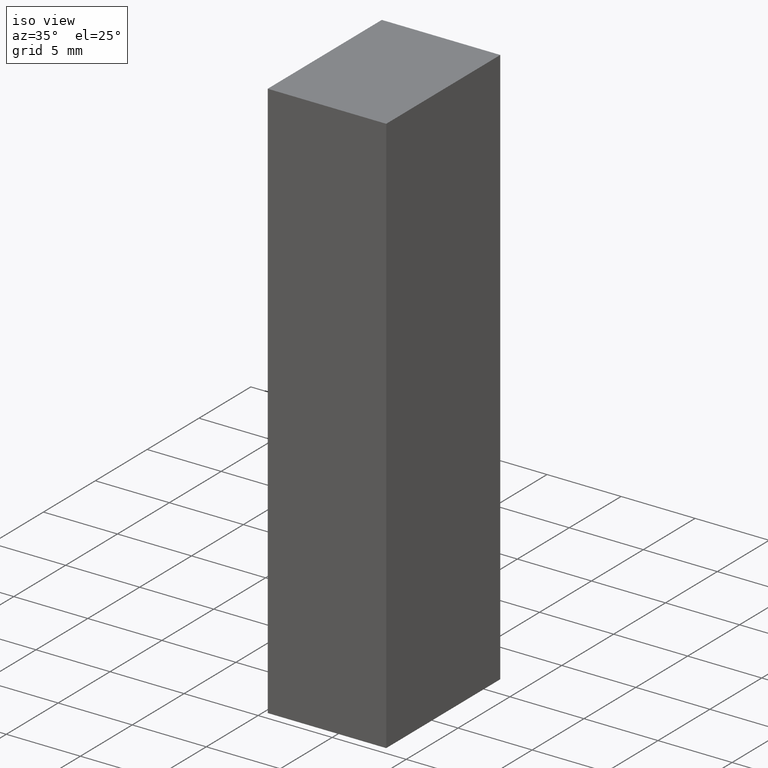
[diagram: clean part render]
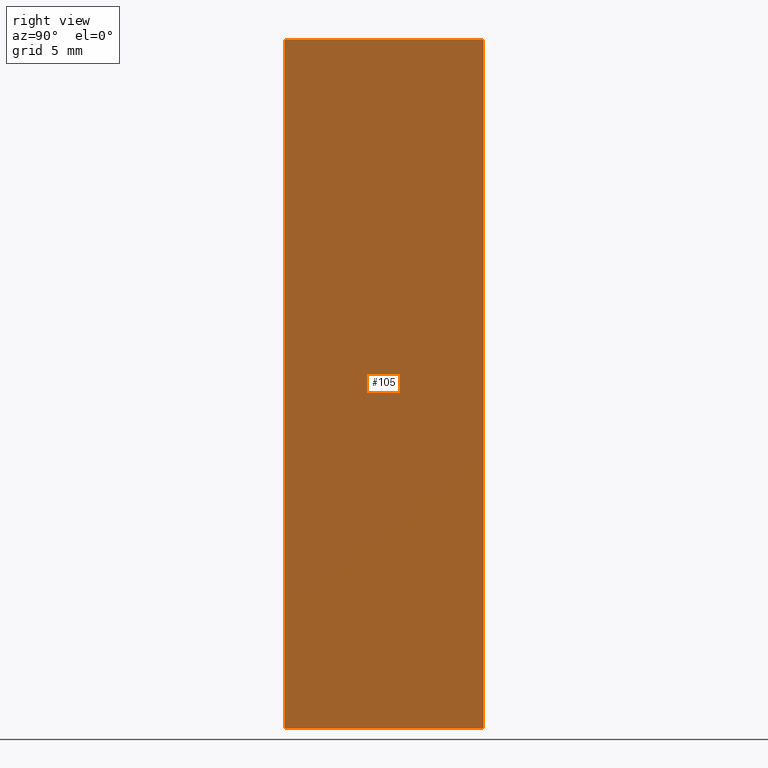
[diagram: tour spotlight — one face highlighted and labeled with its STEP entity id]
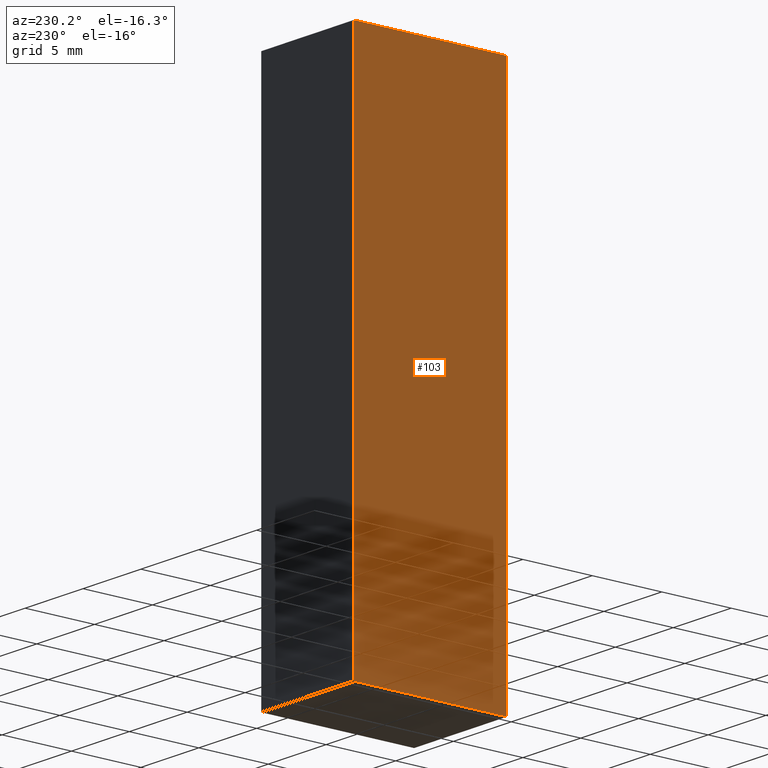
[diagram: tour spotlight — one face highlighted and labeled with its STEP entity id]
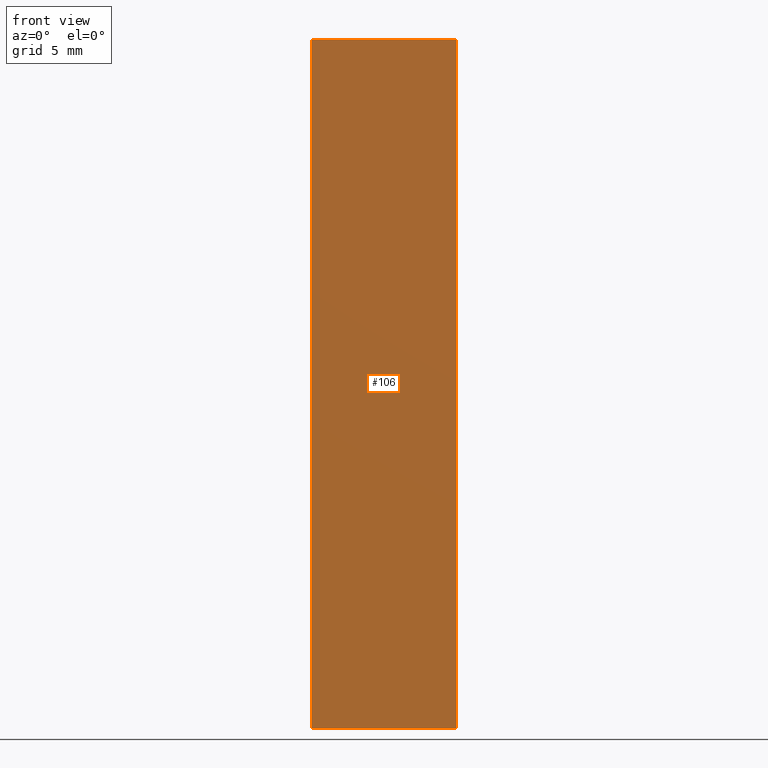
[diagram: tour spotlight — one face highlighted and labeled with its STEP entity id]
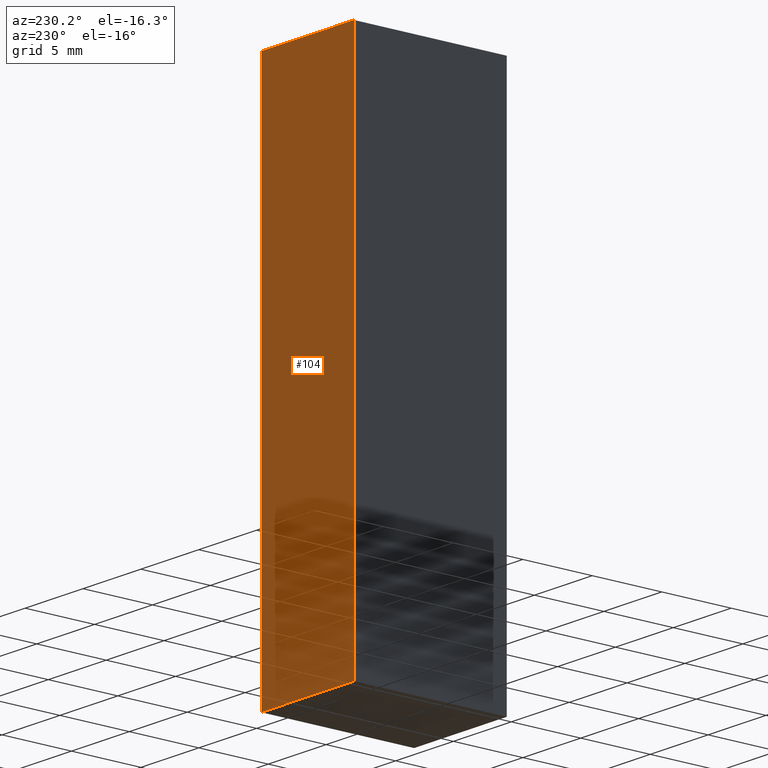
[diagram: tour spotlight — one face highlighted and labeled with its STEP entity id]
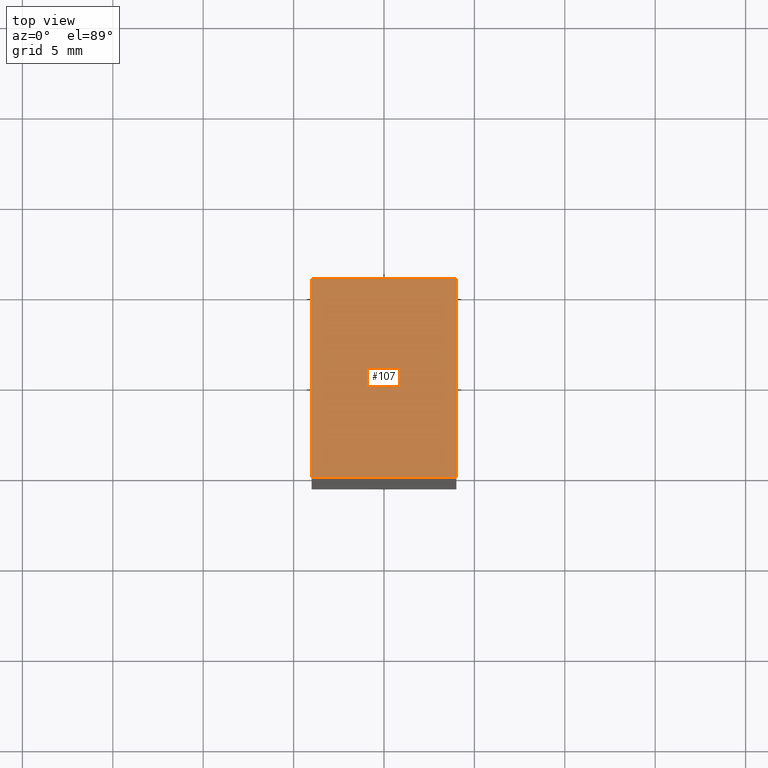
[diagram: tour spotlight — one face highlighted and labeled with its STEP entity id]
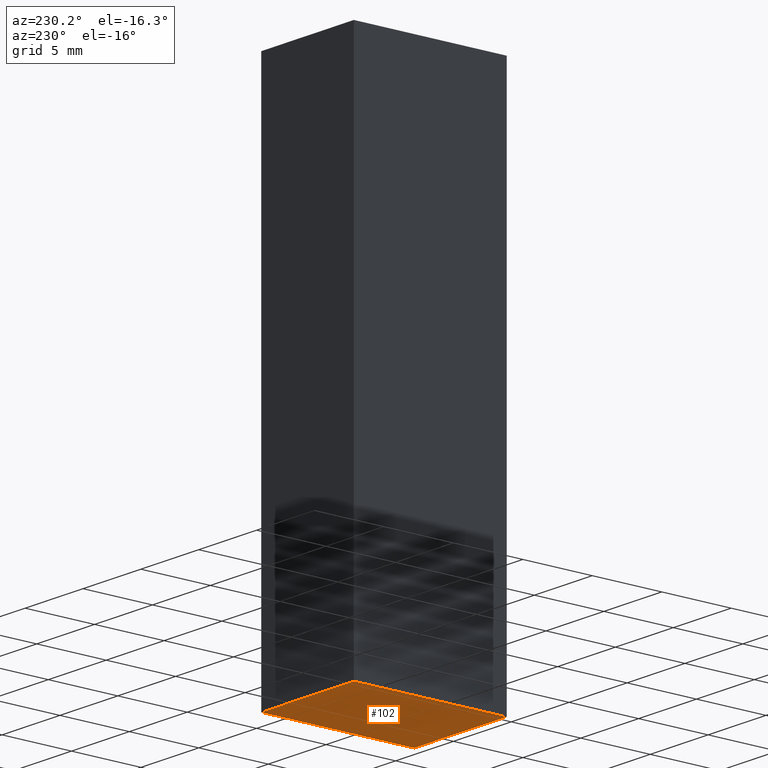
[diagram: tour spotlight — one face highlighted and labeled with its STEP entity id]
A machine part: a face-by-face anatomy tour. The part has 6 B-rep faces; the first image is the clean iso view, then the 6 largest visible faces are spotlighted one at a time (largest first), each with its STEP entity span.

Face 1 — right view, entity #105. In plain terms, the highlighted planar face has unit normal (1, 0, 0).
Definition (entity closure, byte-faithful):
#19=FACE_OUTER_BOUND('',#25,.T.);
#25=EDGE_LOOP('',(#84,#85,#86,#87));
#28=LINE('',#164,#40);
#36=LINE('',#179,#48);
#37=LINE('',#182,#49);
#38=LINE('',#183,#50);
#40=VECTOR('',#138,10.);
#48=VECTOR('',#150,10.);
#49=VECTOR('',#153,10.);
#50=VECTOR('',#154,10.);
#52=VERTEX_POINT('',#162);
#53=VERTEX_POINT('',#163);
#58=VERTEX_POINT('',#177);
#59=VERTEX_POINT('',#181);
#60=EDGE_CURVE('',#52,#53,#28,.T.);
#68=EDGE_CURVE('',#53,#58,#36,.T.);
#69=EDGE_CURVE('',#58,#59,#37,.T.);
#70=EDGE_CURVE('',#52,#59,#38,.T.);
#84=ORIENTED_EDGE('',*,*,#69,.T.);
#85=ORIENTED_EDGE('',*,*,#70,.F.);
#86=ORIENTED_EDGE('',*,*,#60,.T.);
#87=ORIENTED_EDGE('',*,*,#68,.T.);
#99=PLANE('',#131);
#105=ADVANCED_FACE('',(#19),#99,.T.);
#131=AXIS2_PLACEMENT_3D('',#180,#151,#152);
#138=DIRECTION('',(0.,1.,0.));
#150=DIRECTION('',(0.,0.,1.));
#151=DIRECTION('center_axis',(1.,0.,0.));
#152=DIRECTION('ref_axis',(0.,0.,-1.));
#153=DIRECTION('',(0.,-1.,0.));
#154=DIRECTION('',(0.,0.,1.));
#162=CARTESIAN_POINT('',(4.,-5.5,-19.05));
#163=CARTESIAN_POINT('',(4.,5.5,-19.05));
#164=CARTESIAN_POINT('',(4.,-5.5,-19.05));
#177=CARTESIAN_POINT('',(4.,5.5,19.05));
#179=CARTESIAN_POINT('',(4.,5.5,0.));
#180=CARTESIAN_POINT('Origin',(4.,5.5,0.));
#181=CARTESIAN_POINT('',(4.,-5.5,19.05));
#182=CARTESIAN_POINT('',(4.,-5.5,19.05));
#183=CARTESIAN_POINT('',(4.,-5.5,0.));

Face 2 — auxiliary view, entity #103. In plain terms, the highlighted planar face has unit normal (-1, 0, 0).
Definition (entity closure, byte-faithful):
#17=FACE_OUTER_BOUND('',#23,.T.);
#23=EDGE_LOOP('',(#76,#77,#78,#79));
#30=LINE('',#168,#42);
#32=LINE('',#173,#44);
#33=LINE('',#174,#45);
#34=LINE('',#175,#46);
#42=VECTOR('',#140,10.);
#44=VECTOR('',#144,10.);
#45=VECTOR('',#145,10.);
#46=VECTOR('',#146,10.);
#54=VERTEX_POINT('',#165);
#55=VERTEX_POINT('',#167);
#56=VERTEX_POINT('',#171);
#57=VERTEX_POINT('',#172);
#62=EDGE_CURVE('',#55,#54,#30,.T.);
#64=EDGE_CURVE('',#56,#57,#32,.T.);
#65=EDGE_CURVE('',#55,#57,#33,.T.);
#66=EDGE_CURVE('',#56,#54,#34,.T.);
#76=ORIENTED_EDGE('',*,*,#64,.T.);
#77=ORIENTED_EDGE('',*,*,#65,.F.);
#78=ORIENTED_EDGE('',*,*,#62,.T.);
#79=ORIENTED_EDGE('',*,*,#66,.F.);
#97=PLANE('',#129);
#103=ADVANCED_FACE('',(#17),#97,.T.);
#129=AXIS2_PLACEMENT_3D('',#170,#142,#143);
#140=DIRECTION('',(0.,-1.,0.));
#142=DIRECTION('center_axis',(-1.,0.,0.));
#143=DIRECTION('ref_axis',(0.,0.,1.));
#144=DIRECTION('',(0.,1.,0.));
#145=DIRECTION('',(0.,0.,1.));
#146=DIRECTION('',(0.,0.,-1.));
#165=CARTESIAN_POINT('',(-4.,-5.5,-19.05));
#167=CARTESIAN_POINT('',(-4.,5.5,-19.05));
#168=CARTESIAN_POINT('',(-4.,5.5,-19.05));
#170=CARTESIAN_POINT('Origin',(-4.,-5.5,0.));
#171=CARTESIAN_POINT('',(-4.,-5.5,19.05));
#172=CARTESIAN_POINT('',(-4.,5.5,19.05));
#173=CARTESIAN_POINT('',(-4.,5.5,19.05));
#174=CARTESIAN_POINT('',(-4.,5.5,0.));
#175=CARTESIAN_POINT('',(-4.,-5.5,0.));

Face 3 — front view, entity #106. In plain terms, the highlighted planar face has unit normal (0, -1, 0).
Definition (entity closure, byte-faithful):
#20=FACE_OUTER_BOUND('',#26,.T.);
#26=EDGE_LOOP('',(#88,#89,#90,#91));
#29=LINE('',#166,#41);
#34=LINE('',#175,#46);
#38=LINE('',#183,#50);
#39=LINE('',#185,#51);
#41=VECTOR('',#139,10.);
#46=VECTOR('',#146,10.);
#50=VECTOR('',#154,10.);
#51=VECTOR('',#157,10.);
#52=VERTEX_POINT('',#162);
#54=VERTEX_POINT('',#165);
#56=VERTEX_POINT('',#171);
#59=VERTEX_POINT('',#181);
#61=EDGE_CURVE('',#54,#52,#29,.T.);
#66=EDGE_CURVE('',#56,#54,#34,.T.);
#70=EDGE_CURVE('',#52,#59,#38,.T.);
#71=EDGE_CURVE('',#59,#56,#39,.T.);
#88=ORIENTED_EDGE('',*,*,#71,.T.);
#89=ORIENTED_EDGE('',*,*,#66,.T.);
#90=ORIENTED_EDGE('',*,*,#61,.T.);
#91=ORIENTED_EDGE('',*,*,#70,.T.);
#100=PLANE('',#132);
#106=ADVANCED_FACE('',(#20),#100,.T.);
#132=AXIS2_PLACEMENT_3D('',#184,#155,#156);
#139=DIRECTION('',(1.,0.,0.));
#146=DIRECTION('',(0.,0.,-1.));
#154=DIRECTION('',(0.,0.,1.));
#155=DIRECTION('center_axis',(0.,-1.,0.));
#156=DIRECTION('ref_axis',(0.,0.,-1.));
#157=DIRECTION('',(-1.,0.,0.));
#162=CARTESIAN_POINT('',(4.,-5.5,-19.05));
#165=CARTESIAN_POINT('',(-4.,-5.5,-19.05));
#166=CARTESIAN_POINT('',(-4.,-5.5,-19.05));
#171=CARTESIAN_POINT('',(-4.,-5.5,19.05));
#175=CARTESIAN_POINT('',(-4.,-5.5,0.));
#181=CARTESIAN_POINT('',(4.,-5.5,19.05));
#183=CARTESIAN_POINT('',(4.,-5.5,0.));
#184=CARTESIAN_POINT('Origin',(4.,-5.5,0.));
#185=CARTESIAN_POINT('',(-4.,-5.5,19.05));

Face 4 — auxiliary view, entity #104. In plain terms, the highlighted planar face has unit normal (-0, 1, 0).
Definition (entity closure, byte-faithful):
#18=FACE_OUTER_BOUND('',#24,.T.);
#24=EDGE_LOOP('',(#80,#81,#82,#83));
#31=LINE('',#169,#43);
#33=LINE('',#174,#45);
#35=LINE('',#178,#47);
#36=LINE('',#179,#48);
#43=VECTOR('',#141,10.);
#45=VECTOR('',#145,10.);
#47=VECTOR('',#149,10.);
#48=VECTOR('',#150,10.);
#53=VERTEX_POINT('',#163);
#55=VERTEX_POINT('',#167);
#57=VERTEX_POINT('',#172);
#58=VERTEX_POINT('',#177);
#63=EDGE_CURVE('',#53,#55,#31,.T.);
#65=EDGE_CURVE('',#55,#57,#33,.T.);
#67=EDGE_CURVE('',#57,#58,#35,.T.);
#68=EDGE_CURVE('',#53,#58,#36,.T.);
#80=ORIENTED_EDGE('',*,*,#67,.T.);
#81=ORIENTED_EDGE('',*,*,#68,.F.);
#82=ORIENTED_EDGE('',*,*,#63,.T.);
#83=ORIENTED_EDGE('',*,*,#65,.T.);
#98=PLANE('',#130);
#104=ADVANCED_FACE('',(#18),#98,.T.);
#130=AXIS2_PLACEMENT_3D('',#176,#147,#148);
#141=DIRECTION('',(-1.,-1.38777878078145E-16,0.));
#145=DIRECTION('',(0.,0.,1.));
#147=DIRECTION('center_axis',(-1.38777878078145E-16,1.,0.));
#148=DIRECTION('ref_axis',(0.,0.,1.));
#149=DIRECTION('',(1.,1.38777878078145E-16,0.));
#150=DIRECTION('',(0.,0.,1.));
#163=CARTESIAN_POINT('',(4.,5.5,-19.05));
#167=CARTESIAN_POINT('',(-4.,5.5,-19.05));
#169=CARTESIAN_POINT('',(4.,5.5,-19.05));
#172=CARTESIAN_POINT('',(-4.,5.5,19.05));
#174=CARTESIAN_POINT('',(-4.,5.5,0.));
#176=CARTESIAN_POINT('Origin',(-4.,5.5,0.));
#177=CARTESIAN_POINT('',(4.,5.5,19.05));
#178=CARTESIAN_POINT('',(4.,5.5,19.05));
#179=CARTESIAN_POINT('',(4.,5.5,0.));

Face 5 — top view, entity #107. In plain terms, the highlighted planar face has unit normal (0, 0, 1).
Definition (entity closure, byte-faithful):
#21=FACE_OUTER_BOUND('',#27,.T.);
#27=EDGE_LOOP('',(#92,#93,#94,#95));
#32=LINE('',#173,#44);
#35=LINE('',#178,#47);
#37=LINE('',#182,#49);
#39=LINE('',#185,#51);
#44=VECTOR('',#144,10.);
#47=VECTOR('',#149,10.);
#49=VECTOR('',#153,10.);
#51=VECTOR('',#157,10.);
#56=VERTEX_POINT('',#171);
#57=VERTEX_POINT('',#172);
#58=VERTEX_POINT('',#177);
#59=VERTEX_POINT('',#181);
#64=EDGE_CURVE('',#56,#57,#32,.T.);
#67=EDGE_CURVE('',#57,#58,#35,.T.);
#69=EDGE_CURVE('',#58,#59,#37,.T.);
#71=EDGE_CURVE('',#59,#56,#39,.T.);
#92=ORIENTED_EDGE('',*,*,#64,.F.);
#93=ORIENTED_EDGE('',*,*,#71,.F.);
#94=ORIENTED_EDGE('',*,*,#69,.F.);
#95=ORIENTED_EDGE('',*,*,#67,.F.);
#101=PLANE('',#133);
#107=ADVANCED_FACE('',(#21),#101,.T.);
#133=AXIS2_PLACEMENT_3D('',#186,#158,#159);
#144=DIRECTION('',(0.,1.,0.));
#149=DIRECTION('',(1.,1.38777878078145E-16,0.));
#153=DIRECTION('',(0.,-1.,0.));
#157=DIRECTION('',(-1.,0.,0.));
#158=DIRECTION('center_axis',(0.,0.,1.));
#159=DIRECTION('ref_axis',(1.,0.,0.));
#171=CARTESIAN_POINT('',(-4.,-5.5,19.05));
#172=CARTESIAN_POINT('',(-4.,5.5,19.05));
#173=CARTESIAN_POINT('',(-4.,5.5,19.05));
#177=CARTESIAN_POINT('',(4.,5.5,19.05));
#178=CARTESIAN_POINT('',(4.,5.5,19.05));
#181=CARTESIAN_POINT('',(4.,-5.5,19.05));
#182=CARTESIAN_POINT('',(4.,-5.5,19.05));
#185=CARTESIAN_POINT('',(-4.,-5.5,19.05));
#186=CARTESIAN_POINT('Origin',(0.,5.1128691923527E-17,19.05));

Face 6 — auxiliary view, entity #102. In plain terms, the highlighted planar face has unit normal (0, 0, 1).
Definition (entity closure, byte-faithful):
#16=FACE_OUTER_BOUND('',#22,.T.);
#22=EDGE_LOOP('',(#72,#73,#74,#75));
#28=LINE('',#164,#40);
#29=LINE('',#166,#41);
#30=LINE('',#168,#42);
#31=LINE('',#169,#43);
#40=VECTOR('',#138,10.);
#41=VECTOR('',#139,10.);
#42=VECTOR('',#140,10.);
#43=VECTOR('',#141,10.);
#52=VERTEX_POINT('',#162);
#53=VERTEX_POINT('',#163);
#54=VERTEX_POINT('',#165);
#55=VERTEX_POINT('',#167);
#60=EDGE_CURVE('',#52,#53,#28,.T.);
#61=EDGE_CURVE('',#54,#52,#29,.T.);
#62=EDGE_CURVE('',#55,#54,#30,.T.);
#63=EDGE_CURVE('',#53,#55,#31,.T.);
#72=ORIENTED_EDGE('',*,*,#60,.F.);
#73=ORIENTED_EDGE('',*,*,#61,.F.);
#74=ORIENTED_EDGE('',*,*,#62,.F.);
#75=ORIENTED_EDGE('',*,*,#63,.F.);
#96=PLANE('',#128);
#102=ADVANCED_FACE('',(#16),#96,.F.);
#128=AXIS2_PLACEMENT_3D('',#161,#136,#137);
#136=DIRECTION('center_axis',(0.,0.,1.));
#137=DIRECTION('ref_axis',(1.,0.,0.));
#138=DIRECTION('',(0.,1.,0.));
#139=DIRECTION('',(1.,0.,0.));
#140=DIRECTION('',(0.,-1.,0.));
#141=DIRECTION('',(-1.,-1.38777878078145E-16,0.));
#161=CARTESIAN_POINT('Origin',(0.,-5.1128691923527E-17,-19.05));
#162=CARTESIAN_POINT('',(4.,-5.5,-19.05));
#163=CARTESIAN_POINT('',(4.,5.5,-19.05));
#164=CARTESIAN_POINT('',(4.,-5.5,-19.05));
#165=CARTESIAN_POINT('',(-4.,-5.5,-19.05));
#166=CARTESIAN_POINT('',(-4.,-5.5,-19.05));
#167=CARTESIAN_POINT('',(-4.,5.5,-19.05));
#168=CARTESIAN_POINT('',(-4.,5.5,-19.05));
#169=CARTESIAN_POINT('',(4.,5.5,-19.05));